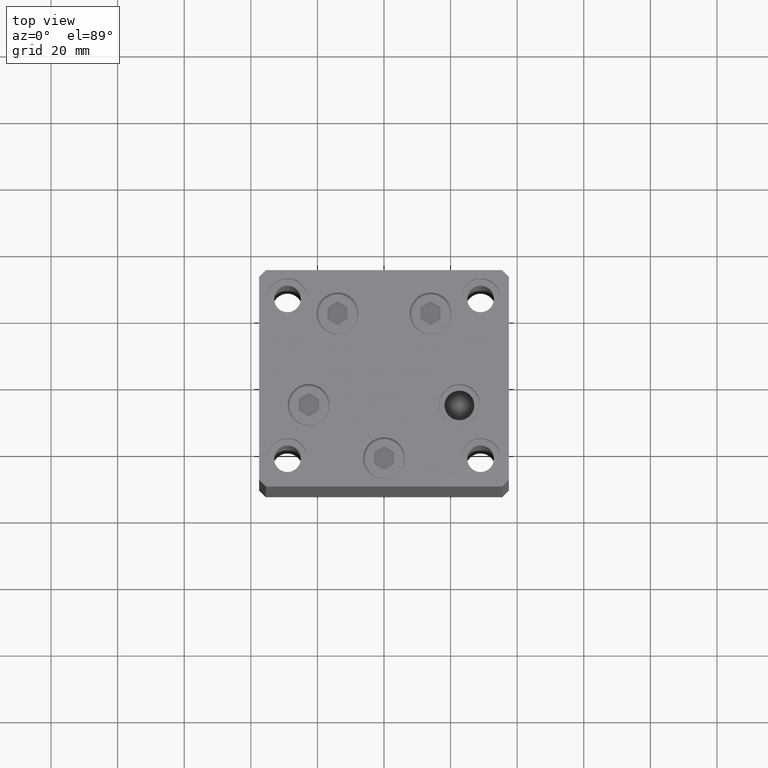
[diagram: clean part render]
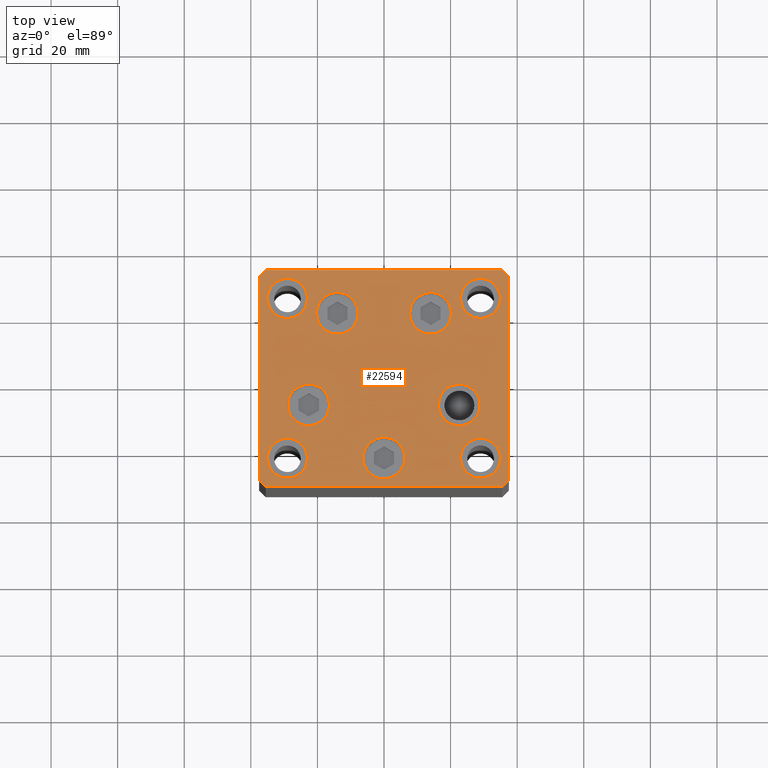
[diagram: same view with one face highlighted and labeled with its STEP entity id]
A machine part, top view. The second image highlights one B-rep face of the part: STEP entity #22594.
In plain terms, the highlighted planar face has unit normal (0, 0, 1).
Its self-contained STEP definition (entity closure, byte-faithful):
#2 = EDGE_CURVE ( 'NONE', #25221, #42075, #11640, .T. ) ;
#105 = CARTESIAN_POINT ( 'NONE',  ( 35.00000000000001421, -23.99999999999999289, 0.000000000000000000 ) ) ;
#296 = CIRCLE ( 'NONE', #15307, 6.250000000000000000 ) ;
#505 = DIRECTION ( 'NONE',  ( 1.000000000000000000, 0.000000000000000000, 0.000000000000000000 ) ) ;
#510 = DIRECTION ( 'NONE',  ( 0.000000000000000000, 0.000000000000000000, 1.000000000000000000 ) ) ;
#538 = CIRCLE ( 'NONE', #8443, 6.250000000000000000 ) ;
#739 = AXIS2_PLACEMENT_3D ( 'NONE', #44680, #37282, #10784 ) ;
#844 = EDGE_CURVE ( 'NONE', #23029, #19976, #12345, .T. ) ;
#1193 = CIRCLE ( 'NONE', #44636, 6.250000000000000000 ) ;
#1386 = AXIS2_PLACEMENT_3D ( 'NONE', #8420, #510, #23268 ) ;
#1430 = CARTESIAN_POINT ( 'NONE',  ( 23.00000000000001066, 24.00000000000000711, 0.000000000000000000 ) ) ;
#2003 = DIRECTION ( 'NONE',  ( -1.000000000000000000, -1.954618001100629052E-16, 0.000000000000000000 ) ) ;
#2075 = ORIENTED_EDGE ( 'NONE', *, *, #42410, .T. ) ;
#2373 = CIRCLE ( 'NONE', #24482, 6.250000000000000000 ) ;
#2377 = CARTESIAN_POINT ( 'NONE',  ( -22.62741699796951877, -8.000000000000005329, 0.000000000000000000 ) ) ;
#2649 = VECTOR ( 'NONE', #16578, 1000.000000000000000 ) ;
#2981 = CARTESIAN_POINT ( 'NONE',  ( 0.000000000000000000, 0.000000000000000000, 0.000000000000000000 ) ) ;
#3022 = EDGE_LOOP ( 'NONE', ( #25137, #29332 ) ) ;
#3454 = ORIENTED_EDGE ( 'NONE', *, *, #11943, .T. ) ;
#3682 = DIRECTION ( 'NONE',  ( 1.000000000000000000, 0.000000000000000000, 0.000000000000000000 ) ) ;
#3945 = FACE_BOUND ( 'NONE', #30944, .T. ) ;
#3951 = CARTESIAN_POINT ( 'NONE',  ( 22.62741699796951877, -8.000000000000000000, 0.000000000000000000 ) ) ;
#4049 = CIRCLE ( 'NONE', #17462, 6.250000000000001776 ) ;
#4145 = CARTESIAN_POINT ( 'NONE',  ( 16.37741699796951877, -8.000000000000000000, 0.000000000000000000 ) ) ;
#4281 = VERTEX_POINT ( 'NONE', #20325 ) ;
#4299 = DIRECTION ( 'NONE',  ( 0.000000000000000000, -0.000000000000000000, -1.000000000000000000 ) ) ;
#4428 = CARTESIAN_POINT ( 'NONE',  ( -23.00000000000001421, -23.99999999999999289, 0.000000000000000000 ) ) ;
#4590 = CARTESIAN_POINT ( 'NONE',  ( 35.49999999999992184, 32.50000000000000711, 0.000000000000000000 ) ) ;
#4893 = EDGE_LOOP ( 'NONE', ( #37633, #16594 ) ) ;
#5209 = VERTEX_POINT ( 'NONE', #45397 ) ;
#5446 = ORIENTED_EDGE ( 'NONE', *, *, #42513, .F. ) ;
#5708 = CARTESIAN_POINT ( 'NONE',  ( 35.49999999999992184, 32.50000000000000711, 0.000000000000000000 ) ) ;
#6906 = CARTESIAN_POINT ( 'NONE',  ( 29.00000000000001066, -23.99999999999999289, 0.000000000000000000 ) ) ;
#6923 = FACE_BOUND ( 'NONE', #46816, .T. ) ;
#7169 = DIRECTION ( 'NONE',  ( -0.000000000000000000, 0.000000000000000000, 1.000000000000000000 ) ) ;
#7599 = EDGE_LOOP ( 'NONE', ( #24014, #16102 ) ) ;
#7625 = VERTEX_POINT ( 'NONE', #35085 ) ;
#7680 = CARTESIAN_POINT ( 'NONE',  ( 22.62741699796951877, -8.000000000000000000, 0.000000000000000000 ) ) ;
#7713 = CARTESIAN_POINT ( 'NONE',  ( 29.00000000000001066, 24.00000000000000711, 0.000000000000000000 ) ) ;
#7781 = ORIENTED_EDGE ( 'NONE', *, *, #38378, .T. ) ;
#7840 = EDGE_CURVE ( 'NONE', #7625, #43334, #43386, .T. ) ;
#7909 = ORIENTED_EDGE ( 'NONE', *, *, #8381, .F. ) ;
#7948 = ORIENTED_EDGE ( 'NONE', *, *, #42568, .T. ) ;
#8018 = CIRCLE ( 'NONE', #14349, 6.250000000000000000 ) ;
#8381 = EDGE_CURVE ( 'NONE', #21750, #42114, #13403, .T. ) ;
#8420 = CARTESIAN_POINT ( 'NONE',  ( -29.00000000000001066, -23.99999999999999289, 0.000000000000000000 ) ) ;
#8443 = AXIS2_PLACEMENT_3D ( 'NONE', #11490, #41442, #23132 ) ;
#8496 = CARTESIAN_POINT ( 'NONE',  ( 2.939152317953647500E-15, -24.00000000000000000, 0.000000000000000000 ) ) ;
#9266 = CARTESIAN_POINT ( 'NONE',  ( -37.49999999999998579, -30.50000000000001421, 0.000000000000000000 ) ) ;
#9331 = CARTESIAN_POINT ( 'NONE',  ( 23.00000000000001066, -23.99999999999999289, 0.000000000000000000 ) ) ;
#9391 = LINE ( 'NONE', #35869, #2649 ) ;
#9735 = VERTEX_POINT ( 'NONE', #33292 ) ;
#9993 = DIRECTION ( 'NONE',  ( 0.000000000000000000, -0.000000000000000000, -1.000000000000000000 ) ) ;
#10024 = CIRCLE ( 'NONE', #39295, 5.999999999999998224 ) ;
#10266 = VECTOR ( 'NONE', #25299, 1000.000000000000000 ) ;
#10410 = DIRECTION ( 'NONE',  ( 0.000000000000000000, 0.000000000000000000, 1.000000000000000000 ) ) ;
#10445 = EDGE_CURVE ( 'NONE', #30418, #48909, #14804, .T. ) ;
#10452 = LINE ( 'NONE', #36449, #37770 ) ;
#10475 = ORIENTED_EDGE ( 'NONE', *, *, #33937, .T. ) ;
#10497 = VECTOR ( 'NONE', #24480, 1000.000000000000000 ) ;
#10632 = FACE_BOUND ( 'NONE', #7599, .T. ) ;
#10638 = DIRECTION ( 'NONE',  ( 0.000000000000000000, -0.000000000000000000, -1.000000000000000000 ) ) ;
#10784 = DIRECTION ( 'NONE',  ( 1.000000000000000000, 0.000000000000000000, 0.000000000000000000 ) ) ;
#10864 = EDGE_LOOP ( 'NONE', ( #3454, #46921, #2075, #7781, #13773, #7948, #17879, #39148 ) ) ;
#10868 = FACE_OUTER_BOUND ( 'NONE', #10864, .T. ) ;
#10869 = AXIS2_PLACEMENT_3D ( 'NONE', #3951, #10638, #25732 ) ;
#11137 = DIRECTION ( 'NONE',  ( 0.000000000000000000, -0.000000000000000000, -1.000000000000000000 ) ) ;
#11313 = DIRECTION ( 'NONE',  ( 1.000000000000000000, 0.000000000000000000, 0.000000000000000000 ) ) ;
#11490 = CARTESIAN_POINT ( 'NONE',  ( -13.99106857963322703, 19.49999999999999645, 0.000000000000000000 ) ) ;
#11636 = EDGE_CURVE ( 'NONE', #19976, #23029, #4049, .T. ) ;
#11640 = CIRCLE ( 'NONE', #1386, 5.999999999999998224 ) ;
#11868 = DIRECTION ( 'NONE',  ( 0.000000000000000000, -0.000000000000000000, -1.000000000000000000 ) ) ;
#11943 = EDGE_CURVE ( 'NONE', #13667, #20206, #46544, .T. ) ;
#12345 = CIRCLE ( 'NONE', #20266, 6.250000000000001776 ) ;
#12375 = DIRECTION ( 'NONE',  ( 1.000000000000000000, 0.000000000000000000, 0.000000000000000000 ) ) ;
#13347 = CARTESIAN_POINT ( 'NONE',  ( 35.50000000000000711, -32.50000000000000711, 0.000000000000000000 ) ) ;
#13403 = CIRCLE ( 'NONE', #15000, 6.000000000000005329 ) ;
#13456 = EDGE_LOOP ( 'NONE', ( #48686, #27160 ) ) ;
#13667 = VERTEX_POINT ( 'NONE', #9266 ) ;
#13773 = ORIENTED_EDGE ( 'NONE', *, *, #10445, .T. ) ;
#14049 = CARTESIAN_POINT ( 'NONE',  ( 6.250000000000002665, -24.00000000000000000, 0.000000000000000000 ) ) ;
#14113 = CARTESIAN_POINT ( 'NONE',  ( 20.24106857963322526, 19.50000000000000000, 0.000000000000000000 ) ) ;
#14349 = AXIS2_PLACEMENT_3D ( 'NONE', #8496, #4299, #41657 ) ;
#14544 = DIRECTION ( 'NONE',  ( 0.000000000000000000, 0.000000000000000000, 1.000000000000000000 ) ) ;
#14599 = FACE_BOUND ( 'NONE', #4893, .T. ) ;
#14699 = CARTESIAN_POINT ( 'NONE',  ( 35.00000000000001421, 24.00000000000000711, 0.000000000000000000 ) ) ;
#14804 = LINE ( 'NONE', #40798, #42712 ) ;
#14836 = VECTOR ( 'NONE', #31871, 1000.000000000000000 ) ;
#15000 = AXIS2_PLACEMENT_3D ( 'NONE', #6906, #19009, #3682 ) ;
#15307 = AXIS2_PLACEMENT_3D ( 'NONE', #43897, #9993, #40446 ) ;
#15370 = AXIS2_PLACEMENT_3D ( 'NONE', #22453, #14544, #11313 ) ;
#15801 = VECTOR ( 'NONE', #2003, 1000.000000000000000 ) ;
#16099 = DIRECTION ( 'NONE',  ( 1.000000000000000000, 0.000000000000000000, 0.000000000000000000 ) ) ;
#16102 = ORIENTED_EDGE ( 'NONE', *, *, #22097, .T. ) ;
#16578 = DIRECTION ( 'NONE',  ( -0.7071067811865426878, -0.7071067811865524577, 0.000000000000000000 ) ) ;
#16594 = ORIENTED_EDGE ( 'NONE', *, *, #26126, .F. ) ;
#17349 = CARTESIAN_POINT ( 'NONE',  ( 29.00000000000001066, 24.00000000000000711, 0.000000000000000000 ) ) ;
#17401 = CARTESIAN_POINT ( 'NONE',  ( -16.37741699796951877, -8.000000000000005329, 0.000000000000000000 ) ) ;
#17411 = CIRCLE ( 'NONE', #35611, 5.999999999999998224 ) ;
#17462 = AXIS2_PLACEMENT_3D ( 'NONE', #2377, #44832, #47878 ) ;
#17568 = ORIENTED_EDGE ( 'NONE', *, *, #27184, .T. ) ;
#17757 = DIRECTION ( 'NONE',  ( 1.000000000000000000, 0.000000000000000000, 0.000000000000000000 ) ) ;
#17879 = ORIENTED_EDGE ( 'NONE', *, *, #21279, .T. ) ;
#19009 = DIRECTION ( 'NONE',  ( 0.000000000000000000, 0.000000000000000000, 1.000000000000000000 ) ) ;
#19028 = FACE_BOUND ( 'NONE', #40236, .T. ) ;
#19973 = EDGE_LOOP ( 'NONE', ( #32705, #10475 ) ) ;
#19976 = VERTEX_POINT ( 'NONE', #17401 ) ;
#20058 = AXIS2_PLACEMENT_3D ( 'NONE', #2981, #7169, #22268 ) ;
#20206 = VERTEX_POINT ( 'NONE', #33410 ) ;
#20266 = AXIS2_PLACEMENT_3D ( 'NONE', #21498, #36591, #37319 ) ;
#20283 = CARTESIAN_POINT ( 'NONE',  ( -35.49999999999998579, -32.50000000000001421, 0.000000000000000000 ) ) ;
#20325 = CARTESIAN_POINT ( 'NONE',  ( -37.50000000000001421, 30.49999999999998579, 0.000000000000000000 ) ) ;
#20798 = VERTEX_POINT ( 'NONE', #40495 ) ;
#20816 = CARTESIAN_POINT ( 'NONE',  ( -37.49999999999998579, -30.50000000000001421, 0.000000000000000000 ) ) ;
#20986 = CARTESIAN_POINT ( 'NONE',  ( -7.741068579633227031, 19.49999999999999645, 0.000000000000000000 ) ) ;
#21092 = EDGE_CURVE ( 'NONE', #23626, #44662, #34188, .T. ) ;
#21259 = EDGE_CURVE ( 'NONE', #20206, #44432, #32141, .T. ) ;
#21279 = EDGE_CURVE ( 'NONE', #27023, #4281, #9391, .T. ) ;
#21498 = CARTESIAN_POINT ( 'NONE',  ( -22.62741699796951877, -8.000000000000005329, 0.000000000000000000 ) ) ;
#21750 = VERTEX_POINT ( 'NONE', #9331 ) ;
#21753 = DIRECTION ( 'NONE',  ( -0.7071067811865482389, 0.7071067811865469066, 0.000000000000000000 ) ) ;
#22018 = DIRECTION ( 'NONE',  ( 1.000000000000000000, 0.000000000000000000, 0.000000000000000000 ) ) ;
#22097 = EDGE_CURVE ( 'NONE', #32889, #45098, #296, .T. ) ;
#22197 = VECTOR ( 'NONE', #35908, 1000.000000000000114 ) ;
#22261 = DIRECTION ( 'NONE',  ( 0.000000000000000000, -0.000000000000000000, -1.000000000000000000 ) ) ;
#22268 = DIRECTION ( 'NONE',  ( 1.000000000000000000, 0.000000000000000000, 0.000000000000000000 ) ) ;
#22388 = CARTESIAN_POINT ( 'NONE',  ( -28.87741699796952233, -8.000000000000005329, 0.000000000000000000 ) ) ;
#22453 = CARTESIAN_POINT ( 'NONE',  ( -29.00000000000001066, 24.00000000000000711, 0.000000000000000000 ) ) ;
#22594 = ADVANCED_FACE ( 'NONE', ( #10632, #6923, #37843, #3945, #48489, #19028, #34123, #14599, #29683, #10868 ), #45501, .T. ) ;
#22926 = CIRCLE ( 'NONE', #36360, 6.000000000000005329 ) ;
#23029 = VERTEX_POINT ( 'NONE', #22388 ) ;
#23132 = DIRECTION ( 'NONE',  ( 1.000000000000000000, 0.000000000000000000, 0.000000000000000000 ) ) ;
#23259 = CARTESIAN_POINT ( 'NONE',  ( 13.99106857963322348, 19.50000000000000000, 0.000000000000000000 ) ) ;
#23268 = DIRECTION ( 'NONE',  ( 1.000000000000000000, 0.000000000000000000, 0.000000000000000000 ) ) ;
#23626 = VERTEX_POINT ( 'NONE', #4145 ) ;
#23964 = LINE ( 'NONE', #39795, #14836 ) ;
#24014 = ORIENTED_EDGE ( 'NONE', *, *, #34198, .T. ) ;
#24480 = DIRECTION ( 'NONE',  ( 1.000000000000000000, 9.773090005503140331E-17, 0.000000000000000000 ) ) ;
#24482 = AXIS2_PLACEMENT_3D ( 'NONE', #40588, #22261, #22018 ) ;
#24667 = EDGE_LOOP ( 'NONE', ( #45044, #5446 ) ) ;
#25055 = DIRECTION ( 'NONE',  ( -1.478780668045802821E-15, 1.000000000000000000, 0.000000000000000000 ) ) ;
#25137 = ORIENTED_EDGE ( 'NONE', *, *, #2, .F. ) ;
#25221 = VERTEX_POINT ( 'NONE', #4428 ) ;
#25263 = DIRECTION ( 'NONE',  ( 1.000000000000000000, 0.000000000000000000, 0.000000000000000000 ) ) ;
#25299 = DIRECTION ( 'NONE',  ( 0.7071067811865487940, 0.7071067811865463515, 0.000000000000000000 ) ) ;
#25671 = VERTEX_POINT ( 'NONE', #37482 ) ;
#25732 = DIRECTION ( 'NONE',  ( 1.000000000000000000, 0.000000000000000000, 0.000000000000000000 ) ) ;
#25819 = AXIS2_PLACEMENT_3D ( 'NONE', #17349, #10410, #25263 ) ;
#26126 = EDGE_CURVE ( 'NONE', #9735, #5209, #47754, .T. ) ;
#27023 = VERTEX_POINT ( 'NONE', #46302 ) ;
#27160 = ORIENTED_EDGE ( 'NONE', *, *, #11636, .T. ) ;
#27184 = EDGE_CURVE ( 'NONE', #43334, #7625, #1193, .T. ) ;
#28096 = CARTESIAN_POINT ( 'NONE',  ( -35.00000000000000711, -23.99999999999999289, 0.000000000000000000 ) ) ;
#29136 = CARTESIAN_POINT ( 'NONE',  ( -29.00000000000001066, -23.99999999999999289, 0.000000000000000000 ) ) ;
#29231 = VERTEX_POINT ( 'NONE', #14049 ) ;
#29332 = ORIENTED_EDGE ( 'NONE', *, *, #43586, .F. ) ;
#29683 = FACE_BOUND ( 'NONE', #24667, .T. ) ;
#30418 = VERTEX_POINT ( 'NONE', #41677 ) ;
#30630 = CIRCLE ( 'NONE', #10869, 6.250000000000001776 ) ;
#30673 = DIRECTION ( 'NONE',  ( 1.000000000000000000, 0.000000000000000000, 0.000000000000000000 ) ) ;
#30716 = CIRCLE ( 'NONE', #33897, 6.000000000000005329 ) ;
#30944 = EDGE_LOOP ( 'NONE', ( #41110, #31423 ) ) ;
#31179 = CARTESIAN_POINT ( 'NONE',  ( 29.00000000000001066, -23.99999999999999289, 0.000000000000000000 ) ) ;
#31423 = ORIENTED_EDGE ( 'NONE', *, *, #46063, .T. ) ;
#31871 = DIRECTION ( 'NONE',  ( 4.550094363217855288E-16, -1.000000000000000000, 0.000000000000000000 ) ) ;
#32141 = LINE ( 'NONE', #20283, #10497 ) ;
#32705 = ORIENTED_EDGE ( 'NONE', *, *, #21092, .T. ) ;
#32889 = VERTEX_POINT ( 'NONE', #20986 ) ;
#32966 = EDGE_CURVE ( 'NONE', #4281, #13667, #23964, .T. ) ;
#33292 = CARTESIAN_POINT ( 'NONE',  ( -35.00000000000000711, 24.00000000000000711, 0.000000000000000000 ) ) ;
#33410 = CARTESIAN_POINT ( 'NONE',  ( -35.49999999999998579, -32.50000000000001421, 0.000000000000000000 ) ) ;
#33897 = AXIS2_PLACEMENT_3D ( 'NONE', #31179, #46269, #12375 ) ;
#33927 = CARTESIAN_POINT ( 'NONE',  ( 35.50000000000000711, -32.50000000000000711, 0.000000000000000000 ) ) ;
#33937 = EDGE_CURVE ( 'NONE', #44662, #23626, #30630, .T. ) ;
#34123 = FACE_BOUND ( 'NONE', #3022, .T. ) ;
#34188 = CIRCLE ( 'NONE', #41344, 6.250000000000001776 ) ;
#34198 = EDGE_CURVE ( 'NONE', #45098, #32889, #538, .T. ) ;
#34609 = EDGE_CURVE ( 'NONE', #46004, #43763, #46374, .T. ) ;
#35085 = CARTESIAN_POINT ( 'NONE',  ( 7.741068579633223479, 19.50000000000000000, 0.000000000000000000 ) ) ;
#35409 = LINE ( 'NONE', #5708, #15801 ) ;
#35611 = AXIS2_PLACEMENT_3D ( 'NONE', #29136, #48176, #17757 ) ;
#35841 = EDGE_CURVE ( 'NONE', #5209, #9735, #10024, .T. ) ;
#35869 = CARTESIAN_POINT ( 'NONE',  ( -35.50000000000002842, 32.49999999999999289, 0.000000000000000000 ) ) ;
#35908 = DIRECTION ( 'NONE',  ( 0.7071067811865474617, -0.7071067811865474617, 0.000000000000000000 ) ) ;
#36058 = CARTESIAN_POINT ( 'NONE',  ( 28.87741699796952233, -8.000000000000000000, 0.000000000000000000 ) ) ;
#36360 = AXIS2_PLACEMENT_3D ( 'NONE', #7713, #42333, #46283 ) ;
#36447 = LINE ( 'NONE', #33927, #10266 ) ;
#36449 = CARTESIAN_POINT ( 'NONE',  ( 37.50000000000001421, -30.50000000000000711, 0.000000000000000000 ) ) ;
#36591 = DIRECTION ( 'NONE',  ( 0.000000000000000000, -0.000000000000000000, -1.000000000000000000 ) ) ;
#37282 = DIRECTION ( 'NONE',  ( 0.000000000000000000, -0.000000000000000000, -1.000000000000000000 ) ) ;
#37319 = DIRECTION ( 'NONE',  ( 1.000000000000000000, 0.000000000000000000, 0.000000000000000000 ) ) ;
#37482 = CARTESIAN_POINT ( 'NONE',  ( -6.249999999999997335, -24.00000000000000000, 0.000000000000000000 ) ) ;
#37633 = ORIENTED_EDGE ( 'NONE', *, *, #35841, .F. ) ;
#37770 = VECTOR ( 'NONE', #25055, 1000.000000000000000 ) ;
#37843 = FACE_BOUND ( 'NONE', #19973, .T. ) ;
#38378 = EDGE_CURVE ( 'NONE', #20798, #30418, #10452, .T. ) ;
#39106 = CARTESIAN_POINT ( 'NONE',  ( -29.00000000000001066, 24.00000000000000711, 0.000000000000000000 ) ) ;
#39148 = ORIENTED_EDGE ( 'NONE', *, *, #32966, .T. ) ;
#39295 = AXIS2_PLACEMENT_3D ( 'NONE', #39106, #46757, #16099 ) ;
#39795 = CARTESIAN_POINT ( 'NONE',  ( -37.50000000000001421, 30.49999999999998579, 0.000000000000000000 ) ) ;
#40236 = EDGE_LOOP ( 'NONE', ( #46558, #7909 ) ) ;
#40290 = EDGE_CURVE ( 'NONE', #42114, #21750, #30716, .T. ) ;
#40446 = DIRECTION ( 'NONE',  ( 1.000000000000000000, 0.000000000000000000, 0.000000000000000000 ) ) ;
#40495 = CARTESIAN_POINT ( 'NONE',  ( 37.50000000000001421, -30.50000000000000711, 0.000000000000000000 ) ) ;
#40588 = CARTESIAN_POINT ( 'NONE',  ( 2.939152317953647500E-15, -24.00000000000000000, 0.000000000000000000 ) ) ;
#40798 = CARTESIAN_POINT ( 'NONE',  ( 37.49999999999992184, 30.50000000000001066, 0.000000000000000000 ) ) ;
#41110 = ORIENTED_EDGE ( 'NONE', *, *, #42686, .T. ) ;
#41344 = AXIS2_PLACEMENT_3D ( 'NONE', #7680, #11137, #505 ) ;
#41442 = DIRECTION ( 'NONE',  ( 0.000000000000000000, -0.000000000000000000, -1.000000000000000000 ) ) ;
#41657 = DIRECTION ( 'NONE',  ( 1.000000000000000000, 0.000000000000000000, 0.000000000000000000 ) ) ;
#41677 = CARTESIAN_POINT ( 'NONE',  ( 37.49999999999992184, 30.50000000000001066, 0.000000000000000000 ) ) ;
#42075 = VERTEX_POINT ( 'NONE', #28096 ) ;
#42114 = VERTEX_POINT ( 'NONE', #105 ) ;
#42333 = DIRECTION ( 'NONE',  ( 0.000000000000000000, 0.000000000000000000, 1.000000000000000000 ) ) ;
#42410 = EDGE_CURVE ( 'NONE', #44432, #20798, #36447, .T. ) ;
#42513 = EDGE_CURVE ( 'NONE', #43763, #46004, #22926, .T. ) ;
#42568 = EDGE_CURVE ( 'NONE', #48909, #27023, #35409, .T. ) ;
#42686 = EDGE_CURVE ( 'NONE', #25671, #29231, #2373, .T. ) ;
#42712 = VECTOR ( 'NONE', #21753, 999.9999999999998863 ) ;
#43334 = VERTEX_POINT ( 'NONE', #14113 ) ;
#43386 = CIRCLE ( 'NONE', #739, 6.250000000000000000 ) ;
#43586 = EDGE_CURVE ( 'NONE', #42075, #25221, #17411, .T. ) ;
#43763 = VERTEX_POINT ( 'NONE', #1430 ) ;
#43897 = CARTESIAN_POINT ( 'NONE',  ( -13.99106857963322703, 19.49999999999999645, 0.000000000000000000 ) ) ;
#44432 = VERTEX_POINT ( 'NONE', #13347 ) ;
#44636 = AXIS2_PLACEMENT_3D ( 'NONE', #23259, #11868, #30673 ) ;
#44662 = VERTEX_POINT ( 'NONE', #36058 ) ;
#44680 = CARTESIAN_POINT ( 'NONE',  ( 13.99106857963322348, 19.50000000000000000, 0.000000000000000000 ) ) ;
#44832 = DIRECTION ( 'NONE',  ( 0.000000000000000000, -0.000000000000000000, -1.000000000000000000 ) ) ;
#45044 = ORIENTED_EDGE ( 'NONE', *, *, #34609, .F. ) ;
#45098 = VERTEX_POINT ( 'NONE', #48342 ) ;
#45397 = CARTESIAN_POINT ( 'NONE',  ( -23.00000000000001421, 24.00000000000000711, 0.000000000000000000 ) ) ;
#45501 = PLANE ( 'NONE',  #20058 ) ;
#46004 = VERTEX_POINT ( 'NONE', #14699 ) ;
#46063 = EDGE_CURVE ( 'NONE', #29231, #25671, #8018, .T. ) ;
#46269 = DIRECTION ( 'NONE',  ( 0.000000000000000000, 0.000000000000000000, 1.000000000000000000 ) ) ;
#46283 = DIRECTION ( 'NONE',  ( 1.000000000000000000, 0.000000000000000000, 0.000000000000000000 ) ) ;
#46302 = CARTESIAN_POINT ( 'NONE',  ( -35.50000000000002842, 32.49999999999999289, 0.000000000000000000 ) ) ;
#46374 = CIRCLE ( 'NONE', #25819, 6.000000000000005329 ) ;
#46544 = LINE ( 'NONE', #20816, #22197 ) ;
#46558 = ORIENTED_EDGE ( 'NONE', *, *, #40290, .F. ) ;
#46757 = DIRECTION ( 'NONE',  ( 0.000000000000000000, 0.000000000000000000, 1.000000000000000000 ) ) ;
#46816 = EDGE_LOOP ( 'NONE', ( #48457, #17568 ) ) ;
#46921 = ORIENTED_EDGE ( 'NONE', *, *, #21259, .T. ) ;
#47754 = CIRCLE ( 'NONE', #15370, 5.999999999999998224 ) ;
#47878 = DIRECTION ( 'NONE',  ( 1.000000000000000000, 0.000000000000000000, 0.000000000000000000 ) ) ;
#48176 = DIRECTION ( 'NONE',  ( 0.000000000000000000, 0.000000000000000000, 1.000000000000000000 ) ) ;
#48342 = CARTESIAN_POINT ( 'NONE',  ( -20.24106857963322881, 19.49999999999999645, 0.000000000000000000 ) ) ;
#48457 = ORIENTED_EDGE ( 'NONE', *, *, #7840, .T. ) ;
#48489 = FACE_BOUND ( 'NONE', #13456, .T. ) ;
#48686 = ORIENTED_EDGE ( 'NONE', *, *, #844, .T. ) ;
#48909 = VERTEX_POINT ( 'NONE', #4590 ) ;